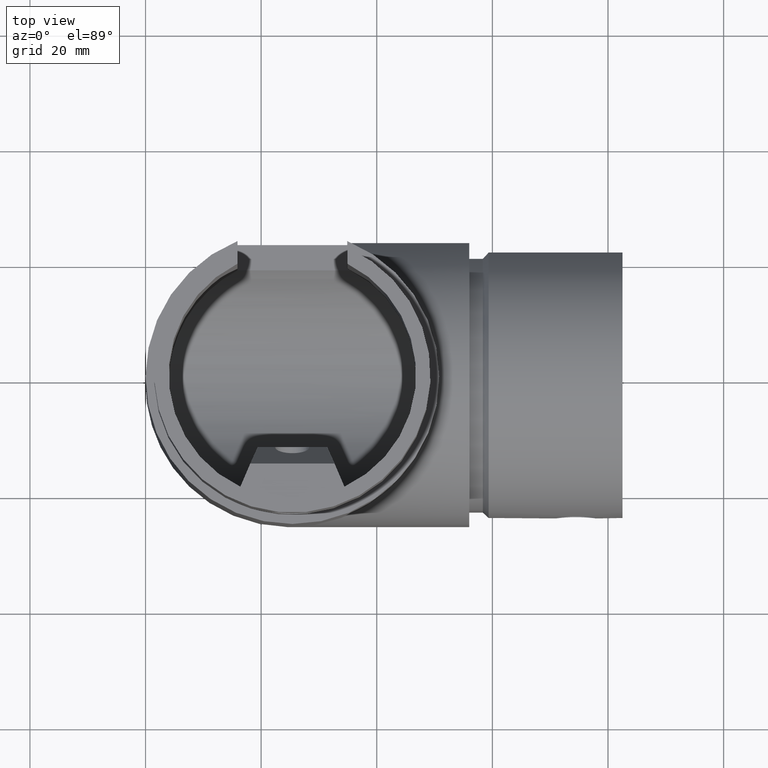
[diagram: clean part render]
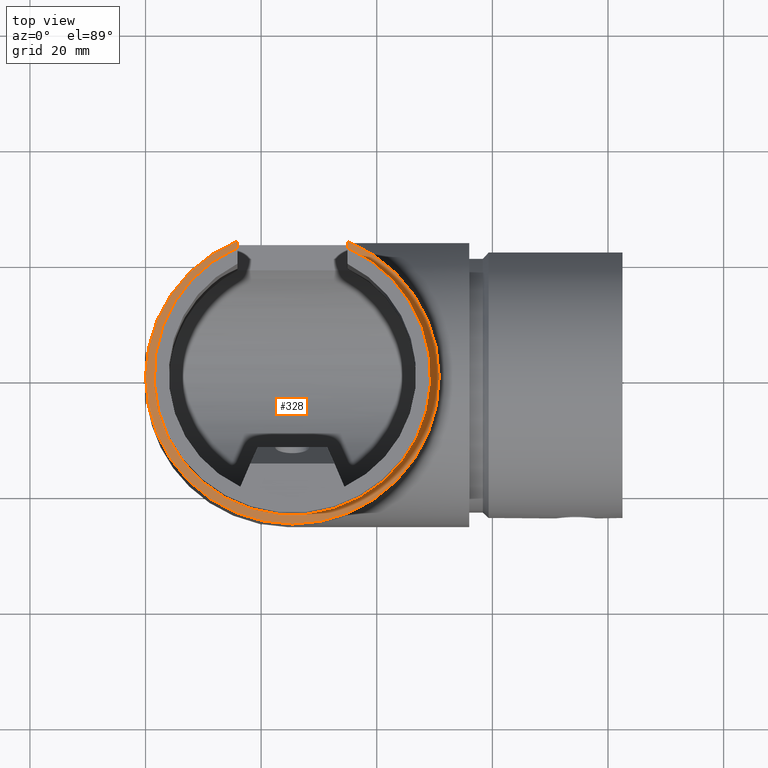
[diagram: same view with one face highlighted and labeled with its STEP entity id]
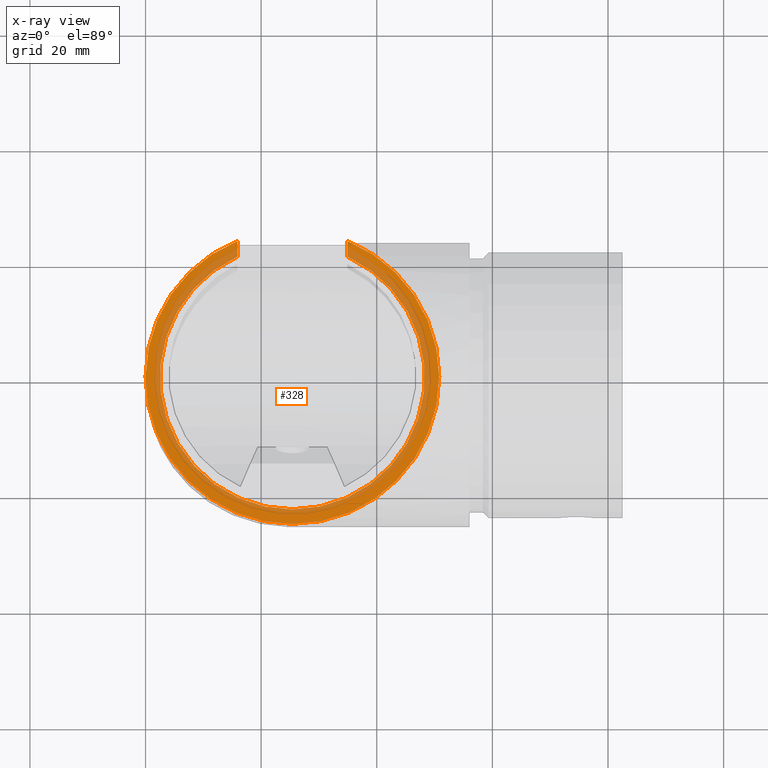
[diagram: x-ray of the same camera — body ghosted, the highlighted face saturated]
A machine part, top view. The second image highlights one B-rep face of the part: STEP entity #328.
The next image is the same camera in x-ray: the body ghosted, the highlighted face saturated — about 39% of this face is hidden behind the body in this view.
In plain terms, the highlighted planar face has unit normal (0, 0, -1).
Its self-contained STEP definition (entity closure, byte-faithful):
#328=ADVANCED_FACE('',(#627),#629,.F.);
#627=FACE_BOUND('',#628,.T.);
#628=EDGE_LOOP('',(#1136,#1137,#1138,#1139));
#629=PLANE('',#630);
#630=AXIS2_PLACEMENT_3D('',#631,#632,#633);
#631=CARTESIAN_POINT('',(25.4,0.,56.));
#632=DIRECTION('',(6.2219153744317E-017,0.,-1.));
#633=DIRECTION('',(0.,-1.,0.));
#1136=ORIENTED_EDGE('',*,*,#1265,.F.);
#1137=ORIENTED_EDGE('',*,*,#1237,.F.);
#1138=ORIENTED_EDGE('',*,*,#1267,.T.);
#1139=ORIENTED_EDGE('',*,*,#1231,.F.);
#1231=EDGE_CURVE('',#1381,#1383,#1384,.T.);
#1237=EDGE_CURVE('',#1391,#1393,#1394,.T.);
#1265=EDGE_CURVE('',#1393,#1381,#1434,.T.);
#1267=EDGE_CURVE('',#1391,#1383,#1436,.T.);
#1381=VERTEX_POINT('',#1929);
#1383=VERTEX_POINT('',#1933);
#1384=LINE('',#1934,#1935);
#1391=VERTEX_POINT('',#1958);
#1393=VERTEX_POINT('',#1962);
#1394=LINE('',#1963,#1964);
#1434=CIRCLE('',#2072,25.4);
#1436=CIRCLE('',#2083,22.9);
#1929=CARTESIAN_POINT('',(15.9,23.556527757715,56.));
#1933=CARTESIAN_POINT('',(15.9,20.8365064250224,56.));
#1934=CARTESIAN_POINT('',(15.9,23.5565277577151,56.));
#1935=VECTOR('',#1936,1.);
#1936=DIRECTION('',(0.,-1.,0.));
#1958=CARTESIAN_POINT('',(34.9,20.8365064250224,56.));
#1962=CARTESIAN_POINT('',(34.9,23.556527757715,56.));
#1963=CARTESIAN_POINT('',(34.9,20.8365064250224,56.));
#1964=VECTOR('',#1965,1.);
#1965=DIRECTION('',(0.,1.,0.));
#2072=AXIS2_PLACEMENT_3D('',#2073,#2074,#2075);
#2073=CARTESIAN_POINT('',(25.4,0.,56.));
#2074=DIRECTION('',(6.2219153744317E-017,0.,-1.));
#2075=DIRECTION('',(0.374015748031496,0.927422352665947,2.32709433295674E-017));
#2083=AXIS2_PLACEMENT_3D('',#2084,#2085,#2086);
#2084=CARTESIAN_POINT('',(25.4,0.,56.));
#2085=DIRECTION('',(6.2219153744317E-017,0.,-1.));
#2086=DIRECTION('',(0.414847161572052,0.909891110262987,2.5811439326245E-017));